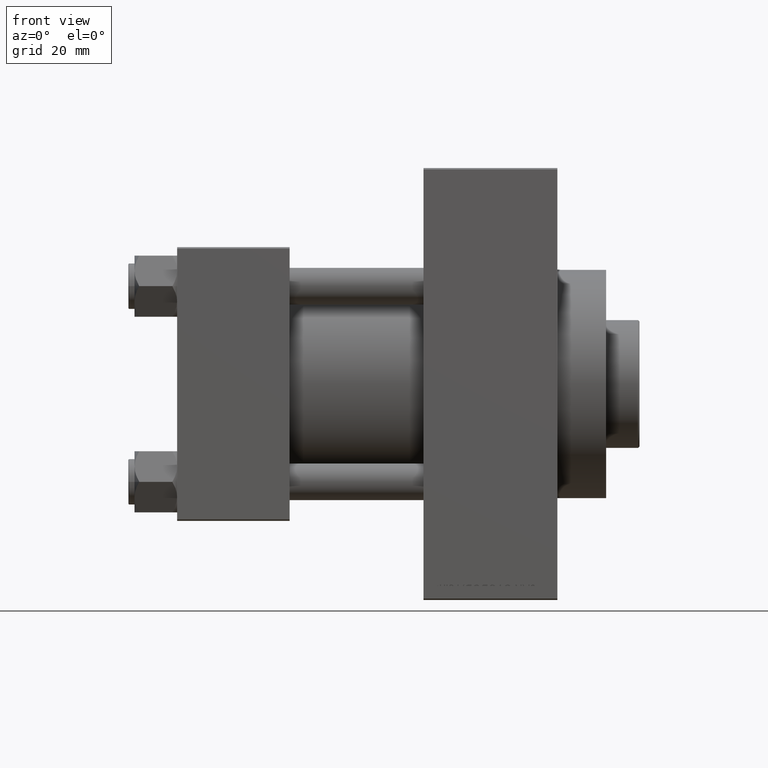
[diagram: clean part render]
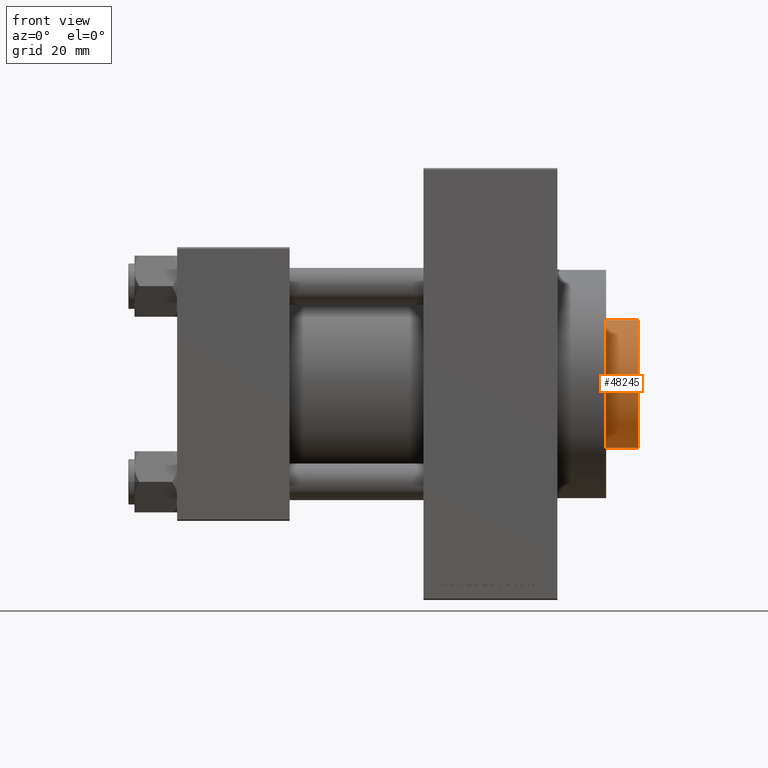
[diagram: same view with one face highlighted and labeled with its STEP entity id]
A machine part, front view. The second image highlights one B-rep face of the part: STEP entity #48245.
In plain terms, the highlighted cylindrical surface (partial cylindrical patch) has radius 21 mm, axis along (-1, 0, 0).
Its self-contained STEP definition (entity closure, byte-faithful):
#2770 = VERTEX_POINT ( 'NONE', #13789 ) ;
#2890 = VERTEX_POINT ( 'NONE', #3085 ) ;
#3081 = LINE ( 'NONE', #44948, #25837 ) ;
#3085 = CARTESIAN_POINT ( 'NONE',  ( -21.00000000000000000, 0.000000000000000000, 53.76000000000001933 ) ) ;
#4088 = DIRECTION ( 'NONE',  ( -0.000000000000000000, -0.000000000000000000, -1.000000000000000000 ) ) ;
#4101 = EDGE_CURVE ( 'NONE', #2890, #2770, #30852, .T. ) ;
#5161 = CARTESIAN_POINT ( 'NONE',  ( 21.00000000000000000, 2.571758278209441661E-15, 43.25999999999999801 ) ) ;
#5371 = AXIS2_PLACEMENT_3D ( 'NONE', #16027, #4088, #8807 ) ;
#5489 = DIRECTION ( 'NONE',  ( -0.000000000000000000, -0.000000000000000000, -1.000000000000000000 ) ) ;
#7272 = DIRECTION ( 'NONE',  ( 0.000000000000000000, 0.000000000000000000, 1.000000000000000000 ) ) ;
#7471 = DIRECTION ( 'NONE',  ( 1.000000000000000000, 0.000000000000000000, 0.000000000000000000 ) ) ;
#8807 = DIRECTION ( 'NONE',  ( -1.000000000000000000, 0.000000000000000000, 0.000000000000000000 ) ) ;
#9514 = CARTESIAN_POINT ( 'NONE',  ( -21.00000000000000000, 0.000000000000000000, 43.25999999999999801 ) ) ;
#10774 = DIRECTION ( 'NONE',  ( -0.000000000000000000, -0.000000000000000000, -1.000000000000000000 ) ) ;
#13789 = CARTESIAN_POINT ( 'NONE',  ( 21.00000000000000000, 2.571758278209441661E-15, 53.76000000000001933 ) ) ;
#15233 = DIRECTION ( 'NONE',  ( 1.000000000000000000, 0.000000000000000000, 0.000000000000000000 ) ) ;
#15356 = AXIS2_PLACEMENT_3D ( 'NONE', #41685, #7272, #15233 ) ;
#16027 = CARTESIAN_POINT ( 'NONE',  ( 0.000000000000000000, 0.000000000000000000, 54.26000000000000512 ) ) ;
#16524 = CYLINDRICAL_SURFACE ( 'NONE', #5371, 21.00000000000000000 ) ;
#17076 = EDGE_CURVE ( 'NONE', #28128, #40590, #24938, .T. ) ;
#17831 = VECTOR ( 'NONE', #5489, 1000.000000000000000 ) ;
#24938 = CIRCLE ( 'NONE', #15356, 21.00000000000000000 ) ;
#25837 = VECTOR ( 'NONE', #10774, 1000.000000000000000 ) ;
#26844 = ORIENTED_EDGE ( 'NONE', *, *, #37956, .F. ) ;
#28128 = VERTEX_POINT ( 'NONE', #5161 ) ;
#30852 = CIRCLE ( 'NONE', #49050, 21.00000000000000000 ) ;
#34823 = ORIENTED_EDGE ( 'NONE', *, *, #4101, .T. ) ;
#35136 = CARTESIAN_POINT ( 'NONE',  ( 0.000000000000000000, 0.000000000000000000, 53.76000000000001933 ) ) ;
#36393 = EDGE_CURVE ( 'NONE', #2770, #28128, #43387, .T. ) ;
#37956 = EDGE_CURVE ( 'NONE', #2890, #40590, #3081, .T. ) ;
#40590 = VERTEX_POINT ( 'NONE', #9514 ) ;
#41190 = ORIENTED_EDGE ( 'NONE', *, *, #17076, .T. ) ;
#41685 = CARTESIAN_POINT ( 'NONE',  ( 0.000000000000000000, 0.000000000000000000, 43.25999999999999801 ) ) ;
#43137 = CARTESIAN_POINT ( 'NONE',  ( 21.00000000000000000, 2.571758278209441661E-15, 54.26000000000000512 ) ) ;
#43213 = FACE_OUTER_BOUND ( 'NONE', #45808, .T. ) ;
#43387 = LINE ( 'NONE', #43137, #17831 ) ;
#44948 = CARTESIAN_POINT ( 'NONE',  ( -21.00000000000000000, 0.000000000000000000, 54.26000000000000512 ) ) ;
#45383 = DIRECTION ( 'NONE',  ( 0.000000000000000000, 0.000000000000000000, -1.000000000000000000 ) ) ;
#45808 = EDGE_LOOP ( 'NONE', ( #34823, #49052, #41190, #26844 ) ) ;
#48245 = ADVANCED_FACE ( 'NONE', ( #43213 ), #16524, .T. ) ;
#49050 = AXIS2_PLACEMENT_3D ( 'NONE', #35136, #45383, #7471 ) ;
#49052 = ORIENTED_EDGE ( 'NONE', *, *, #36393, .T. ) ;